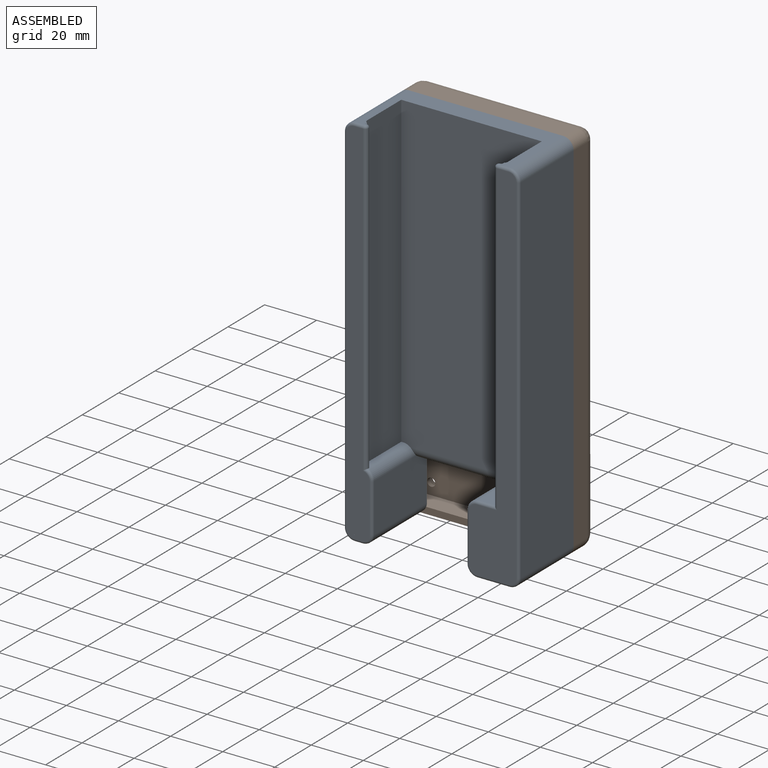
[diagram: assembled view]
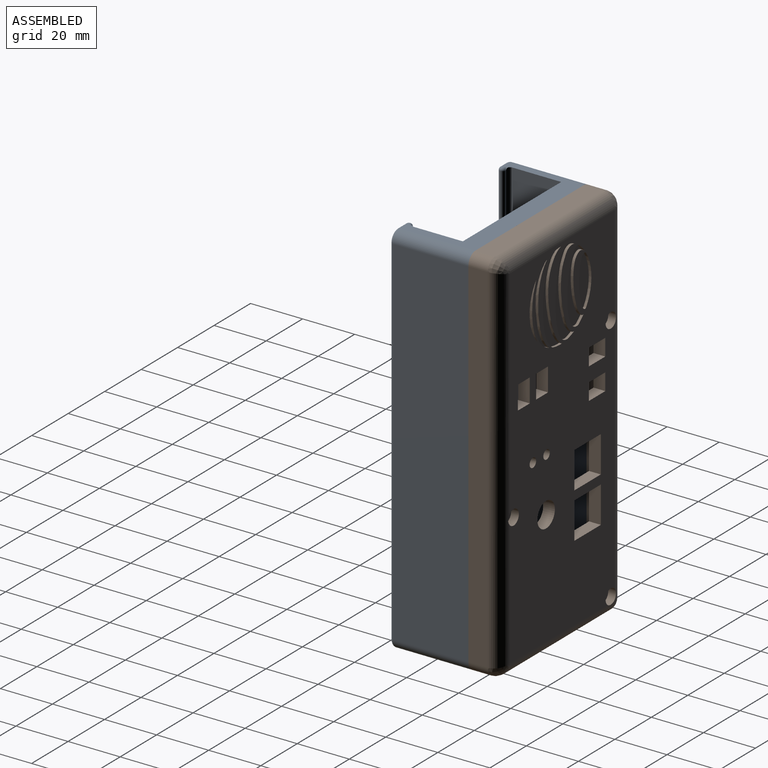
[diagram: assembled view, second angle]
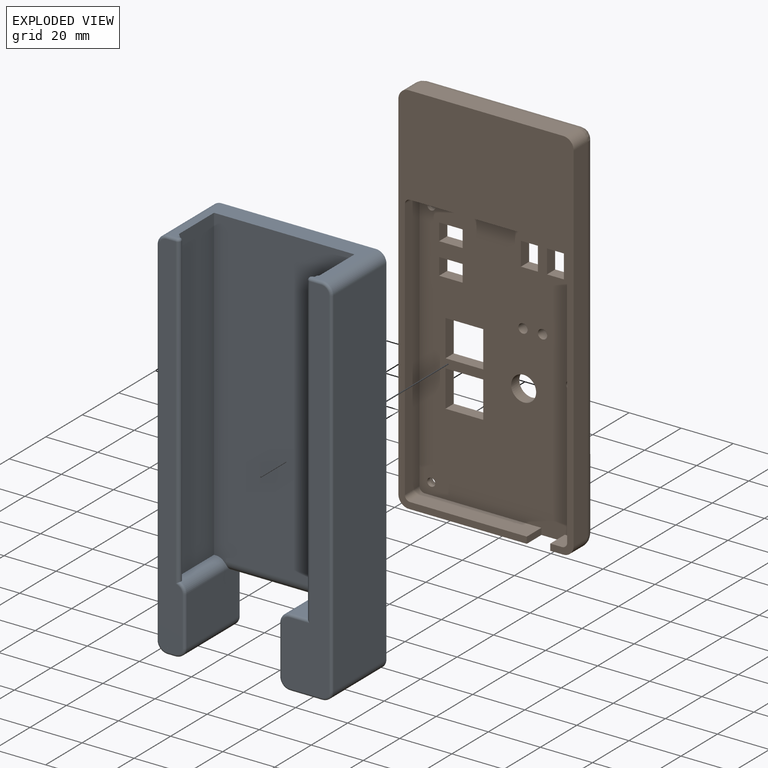
[diagram: exploded view]
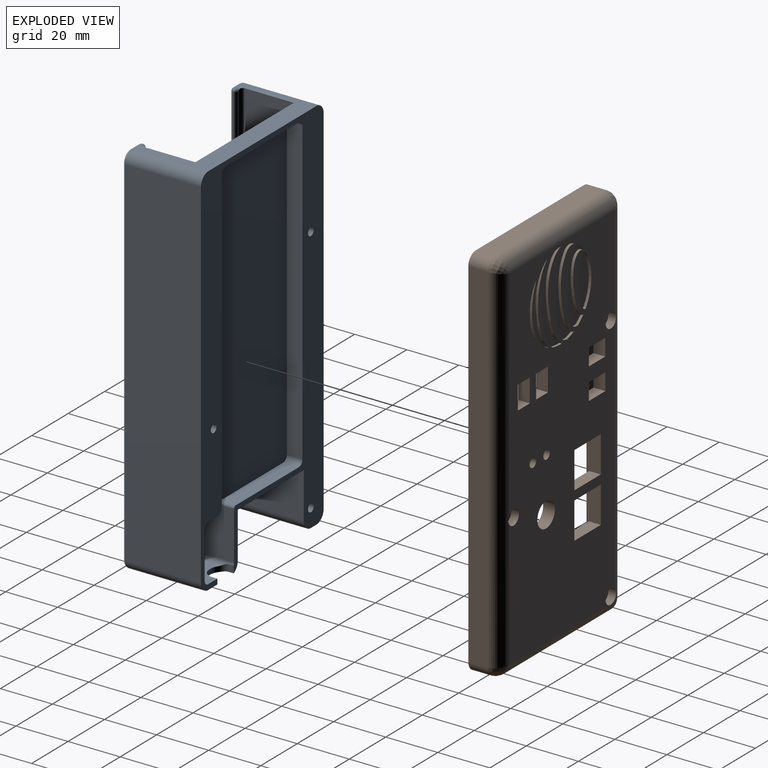
[diagram: exploded view, second angle]
ASSEMBLY  parts=2 mates=3
PART A: 86 faces, bbox 68.2x30.3x146.2 mm
  f0: plane 143.33x18.21mm, normal (0,-1,0), area 1326.2mm2, adj f4,f5,f6,f7,f8,f18,f19,f20
  f1: plane 3.1x3.1mm, normal (0,1,0), area 7.5mm2, adj f26
  f2: plane 3.1x3.1mm, normal (0,1,0), area 7.5mm2, adj f27
  f3: plane 3.1x3.1mm, normal (0,1,0), area 7.5mm2, adj f28
  f4: torus R=3mm, axis (0,1,0), area 9mm2, adj f0,f8,f18,f29
  f5: torus R=3mm, axis (0,-1,0), area 9mm2, adj f0,f6,f25,f30
  f6: cylinder r=1mm len=137.33mm, axis (0,0,1), area 215.7mm2, adj f0,f5,f7,f31
  f7: torus R=3mm, axis (0,-1,0), area 9mm2, adj f0,f6,f8,f32
  f8: cylinder r=1mm len=12.21mm, axis (1,0,0), area 19.2mm2, adj f0,f4,f7,f33
  f9: cylinder r=4mm len=4mm, axis (0,0,1), area 12.6mm2, adj f10,f33,f34,f35
  f10: plane 2x0.99mm, normal (0,1,0), area 2mm2, adj f9,f17,f33,f35
  f11: cylinder r=2mm len=6.75mm, axis (-1,0,0), area 18.1mm2, adj f12,f15,f39,f40
  f12: plane 121.09x44.48mm, normal (0,1,0), area 5279.9mm2, adj f11,f13,f15,f41,f42,f43,f44,f45
  f13: cylinder r=1mm len=1.12mm, axis (-0.05,1,0), area 1.1mm2, adj f12,f15,f47,f48
  f14: cylinder r=2mm len=10mm, axis (0,-1,0), area 31.4mm2, adj f15,f16,f39,f49
  f15: torus R=4mm, axis (-1,0,0), area 7.8mm2, adj f11,f12,f13,f14,f49
  f16: plane 21.62x16.21mm, normal (0,1,0), area 347mm2, adj f14,f35,f36,f37,f38,f39,f49,f50
  f17: cylinder r=4mm len=4mm, axis (0,0,-1), area 13.9mm2, adj f10,f29,f33,f35,f50,f51
  f18: cylinder r=1mm len=18.62mm, axis (0,0,-1), area 29.2mm2, adj f0,f4,f21,f53
  f19: cylinder r=1.25mm len=118.71mm, axis (0,0,-1), area 463.1mm2, adj f0,f20,f22,f24,f55
  f20: cylinder r=1mm len=7.75mm, axis (-1,0,0), area 11.2mm2, adj f0,f19,f21,f55
  f21: torus R=3mm, axis (0,1,0), area 9mm2, adj f0,f18,f20,f56
  f22: cylinder r=2.5mm len=118.71mm, axis (0,0,-1), area 214mm2, adj f19,f23,f54,f55,f59
  f23: torus R=1mm, axis (0,0,1), area 1.5mm2, adj f22,f24,f59
  f24: torus R=0.25mm, axis (0,0,1), area 4.4mm2, adj f19,f23,f25,f59
  f25: cylinder r=1mm len=4.46mm, axis (-1,0,0), area 7mm2, adj f0,f5,f24,f59
  f26: cylinder r=1.55mm len=6mm, axis (0,-1,0), area 58.4mm2, adj f1,f65
  f27: cylinder r=1.55mm len=6mm, axis (0,-1,0), area 58.4mm2, adj f2,f65
  f28: cylinder r=1.55mm len=6mm, axis (0,-1,0), area 58.4mm2, adj f3,f65
  f29: cylinder r=4mm len=29mm, axis (0,-1,0), area 175.5mm2, adj f4,f17,f33,f51,f53,f65
  f30: cylinder r=4mm len=29mm, axis (0,-1,0), area 182.2mm2, adj f5,f31,f59,f65
  f31: plane 137.33x29mm, normal (1,0,0), area 3982.5mm2, adj f6,f30,f32,f65
  f32: cylinder r=4mm len=29mm, axis (0,-1,0), area 182.2mm2, adj f7,f31,f33,f65
  f33: plane 29x12.21mm, normal (0,0,-1), area 314.7mm2, adj f8,f9,f10,f17,f29,f32,f34,f65
  f34: plane 2x2mm, normal (-1,0,0), area 4mm2, adj f9,f33,f35,f65
  f35: plane 18x12.21mm, normal (0,0,1), area 180.4mm2, adj f9,f10,f16,f17,f34,f36,f50,f65
  f36: cylinder r=2mm len=18mm, axis (0,-1,0), area 56.5mm2, adj f16,f35,f37,f65
  f37: plane 18x17.62mm, normal (-1,0,0), area 317.2mm2, adj f16,f36,f38,f65
  f38: cylinder r=2mm len=18mm, axis (0,-1,0), area 56.5mm2, adj f16,f37,f39,f65
  f39: plane 18x12.21mm, normal (0,0,-1), area 165.8mm2, adj f11,f14,f16,f38,f40,f65
  f40: cylinder r=2mm len=8mm, axis (0,-1,0), area 22mm2, adj f11,f39,f41,f65
  f41: plane 115.71x6mm, normal (-1,0,0), area 694.3mm2, adj f12,f40,f42,f65
  f42: cylinder r=2mm len=6mm, axis (0,-1,0), area 18.8mm2, adj f12,f41,f43,f65
  f43: plane 40.23x6mm, normal (0,0,-1), area 241.3mm2, adj f12,f42,f44,f65
  f44: cylinder r=2mm len=6mm, axis (0,-1,0), area 18.8mm2, adj f12,f43,f45,f65
  f45: plane 115.71x6mm, normal (1,0,0), area 694.3mm2, adj f12,f44,f46,f65
  f46: cylinder r=2mm len=6mm, axis (0,-1,0), area 18.8mm2, adj f12,f45,f47,f65
  f47: plane 34.5x6mm, normal (0,0,1), area 206.9mm2, adj f12,f13,f46,f48,f65
  f48: cylinder r=1mm len=5.35mm, axis (0,-1,0), area 8.4mm2, adj f13,f47,f49,f65
  f49: plane 18.62x18mm, normal (1,0,0), area 323.3mm2, adj f14,f15,f16,f48,f50,f65
  f50: cylinder r=2mm len=18mm, axis (0,-1,0), area 47.6mm2, adj f16,f17,f35,f49,f51,f65
  f51: plane 2.66x2mm, normal (1,0,0), area 5.3mm2, adj f17,f29,f50,f65
  f52: plane 36.15x3.18mm, normal (0,0,-1), area 115mm2, adj f53,f65,f66,f67
  f53: plane 29x18.62mm, normal (-1,0,0), area 535mm2, adj f18,f29,f52,f56,f65,f67
  f54: plane 118.71x19.07mm, normal (-1,0,0), area 2263.8mm2, adj f22,f55,f59,f68
  f55: plane 21.82x9mm, normal (0,0,1), area 192.4mm2, adj f19,f20,f22,f54,f56,f68
  f56: cylinder r=4mm len=23.17mm, axis (0,1,0), area 139.4mm2, adj f21,f53,f55,f67,f68
  f57: plane 118.71x19.07mm, normal (1,0,0), area 2263.8mm2, adj f59,f68,f69,f71
  f58: torus R=1mm, axis (0,0,1), area 1.5mm2, adj f59,f70,f71
  f59: plane 59.31x29mm, normal (0,0,1), area 545.3mm2, adj f22,f23,f24,f25,f30,f54,f57,f58
  f60: cylinder r=4mm len=29mm, axis (0,-1,0), area 182.2mm2, adj f59,f61,f65,f73
  f61: plane 137.33x29mm, normal (-1,0,0), area 3982.5mm2, adj f60,f62,f65,f74
  f62: cylinder r=4mm len=29mm, axis (0,-1,0), area 182.2mm2, adj f61,f63,f65,f75
  f63: plane 29x2.95mm, normal (0,0,-1), area 85.5mm2, adj f62,f64,f65,f76
  f64: cylinder r=4mm len=29mm, axis (0,1,0), area 182.2mm2, adj f63,f65,f66,f77
  f65: plane 145.33x67.31mm, normal (0,1,0), area 3298.5mm2, adj f26,f27,f28,f29,f30,f31,f32,f33
  f66: plane 29x18.62mm, normal (1,0,0), area 535mm2, adj f52,f64,f65,f67,f81,f82
  f67: cylinder r=4mm len=38.86mm, axis (-1,0,0), area 231.7mm2, adj f52,f53,f56,f66,f68,f82
  f68: plane 119.71x53.98mm, normal (0,-1,0), area 6447.8mm2, adj f54,f55,f56,f57,f59,f67,f69,f82
  f69: plane 20.08x0.83mm, normal (0,0,1), area 16.2mm2, adj f57,f68,f71,f82
  f70: torus R=0.25mm, axis (0,0,1), area 4.4mm2, adj f58,f59,f72,f83
  f71: cylinder r=2.5mm len=118.73mm, axis (0,0,-1), area 214.3mm2, adj f57,f58,f59,f69,f82,f83
  f72: cylinder r=1mm len=3.38mm, axis (-1,0,0), area 5.3mm2, adj f59,f70,f73,f84
  f73: torus R=3mm, axis (0,-1,0), area 9mm2, adj f60,f72,f74,f84
  f74: cylinder r=1mm len=137.33mm, axis (0,0,-1), area 215.7mm2, adj f61,f73,f75,f84
  f75: torus R=3mm, axis (0,-1,0), area 9mm2, adj f62,f74,f76,f84
  f76: cylinder r=1mm len=2.95mm, axis (1,0,0), area 4.6mm2, adj f63,f75,f77,f84
  f77: torus R=3mm, axis (0,1,0), area 9mm2, adj f64,f76,f81,f84
  f78: plane 30x0.55mm, normal (0,0,1), area 16.5mm2, adj f65,f79,f80,f84
  f79: plane 30x0.08mm, normal (1,0,0), area 2.3mm2, adj f65,f78,f80,f84
  f80: cylinder r=2mm len=30mm, axis (0,-1,0), area 16.7mm2, adj f65,f78,f79,f84
  f81: cylinder r=1mm len=18.62mm, axis (0,0,-1), area 29.2mm2, adj f66,f77,f84,f85
  f82: cylinder r=4mm len=23.17mm, axis (0,-1,0), area 136.1mm2, adj f66,f67,f68,f69,f71,f83,f85
  f83: cylinder r=1.25mm len=118.74mm, axis (0,0,-1), area 463.8mm2, adj f70,f71,f82,f84,f85
  f84: plane 143.33x8.95mm, normal (0,-1,0), area 969.4mm2, adj f72,f73,f74,f75,f76,f77,f78,f79
  f85: torus R=3mm, axis (0,1,0), area 7.3mm2, adj f81,f82,f83,f84
PART B: 93 faces, bbox 67.3x12.5x145.3 mm
  f0: cylinder r=4mm len=7.5mm, axis (0,1,0), area 47.1mm2, adj f14,f16,f18,f19
  f1: cylinder r=4mm len=7.5mm, axis (0,1,0), area 47.1mm2, adj f14,f16,f27,f28
  f2: cylinder r=4mm len=7.5mm, axis (0,-1,0), area 47.1mm2, adj f14,f19,f30,f31
  f3: cylinder r=1.55mm len=3.1mm, axis (0,1,0), area 14.6mm2, adj f17,f33
  f4: cylinder r=1.55mm len=3.1mm, axis (0,1,0), area 14.6mm2, adj f15,f33
  f5: cylinder r=2mm len=8mm, axis (0,-1,0), area 25.1mm2, adj f6,f13,f14,f33
  f6: plane 100.9x8mm, normal (1,0,0), area 807.2mm2, adj f5,f7,f14,f33
  f7: cylinder r=2mm len=8mm, axis (0,-1,0), area 25.1mm2, adj f6,f8,f14,f33
  f8: plane 58.31x8mm, normal (0,0,-1), area 466.5mm2, adj f7,f9,f14,f33
  f9: cylinder r=2mm len=8mm, axis (0,-1,0), area 25.1mm2, adj f8,f10,f14,f33
  f10: plane 100.9x8mm, normal (-1,0,0), area 807.2mm2, adj f9,f11,f14,f33
  f11: cylinder r=2mm len=8mm, axis (0,-1,0), area 25.1mm2, adj f10,f12,f14,f33
  f12: plane 8x4.5mm, normal (0,0,1), area 36mm2, adj f11,f14,f32,f33
  f13: plane 44.81x8mm, normal (0,0,1), area 358.5mm2, adj f5,f14,f33,f34
  f14: plane 145.33x67.31mm, normal (0,-1,0), area 3213mm2, adj f0,f1,f2,f5,f6,f7,f8,f9
  f15: plane 5.75x5.75mm, normal (0,1,0), area 18.4mm2, adj f4,f36
  f16: plane 59.31x7.5mm, normal (0,0,1), area 444.8mm2, adj f0,f1,f14,f37
  f17: plane 5.75x5.75mm, normal (0,1,0), area 18.4mm2, adj f3,f38
  f18: bspline ~5x5mm, area 21.9mm2, adj f0,f37,f39
  f19: plane 137.33x7.5mm, normal (1,0,0), area 1030mm2, adj f0,f2,f14,f39
  f20: plane 33.94x10.83mm, normal (0,1,0), area 107.1mm2, adj f67,f68,f69,f70
  f21: plane 27.81x9.71mm, normal (0,1,0), area 105.8mm2, adj f71,f72,f73,f74
  f22: plane 19.67x7.07mm, normal (0,1,0), area 100.2mm2, adj f75,f76
  f23: plane 31.2x8.23mm, normal (0,1,0), area 52.6mm2, adj f77,f78,f79,f80
  f24: plane 21.88x4.56mm, normal (0,1,0), area 21.6mm2, adj f81,f82
  f25: plane 33.12x10.95mm, normal (0,1,0), area 117.6mm2, adj f83,f84,f85,f86
  f26: cylinder r=1.55mm len=3.1mm, axis (0,1,0), area 14.6mm2, adj f33,f87
  f27: plane 137.33x7.5mm, normal (-1,0,0), area 1030mm2, adj f1,f14,f29,f88
  f28: bspline ~5x5mm, area 21.9mm2, adj f1,f37,f88
  f29: cylinder r=4mm len=7.5mm, axis (0,1,0), area 47.1mm2, adj f14,f27,f35,f89
  f30: bspline ~5x5mm, area 21.9mm2, adj f2,f39,f90
  f31: plane 7.5x5mm, normal (0,0,-1), area 37.5mm2, adj f2,f14,f32,f90
  f32: plane 8x2.5mm, normal (-1,0,0), area 20mm2, adj f12,f14,f31,f33,f90
  f33: plane 107.38x62.31mm, normal (0,-1,0), area 5800.1mm2, adj f3,f4,f5,f6,f7,f8,f9,f10
  f34: plane 8x2.5mm, normal (1,0,0), area 20mm2, adj f13,f14,f33,f35,f90
  f35: plane 45.31x7.5mm, normal (0,0,-1), area 339.8mm2, adj f14,f29,f34,f90
  f36: cylinder r=2.88mm len=5.75mm, axis (0,-1,0), area 54mm2, adj f15,f88,f91
  f37: cylinder r=5mm len=59.31mm, axis (1,0,0), area 458mm2, adj f16,f18,f28,f91
  f38: cylinder r=2.88mm len=5.75mm, axis (0,-1,0), area 54mm2, adj f17,f39,f91
  f39: cylinder r=5mm len=137.33mm, axis (0,0,-1), area 1068.9mm2, adj f18,f19,f30,f38,f91
  f40: cylinder r=1.78mm len=4.5mm, axis (0,-1,0), area 50.2mm2, adj f33,f91
  f41: cylinder r=1.78mm len=4.5mm, axis (0,-1,0), area 50.2mm2, adj f33,f91
  f42: plane 6.5x4.5mm, normal (0,0,-1), area 29.2mm2, adj f33,f43,f45,f91
  f43: plane 9.01x4.5mm, normal (1,0,0), area 40.5mm2, adj f33,f42,f44,f91
  f44: plane 6.5x4.5mm, normal (0,0,1), area 29.2mm2, adj f33,f43,f45,f91
  f45: plane 9.01x4.5mm, normal (-1,0,0), area 40.5mm2, adj f33,f42,f44,f91
  f46: plane 6.5x4.5mm, normal (0,0,1), area 29.2mm2, adj f33,f47,f49,f91
  f47: plane 9.01x4.5mm, normal (-1,0,0), area 40.5mm2, adj f33,f46,f48,f91
  f48: plane 6.5x4.5mm, normal (0,0,-1), area 29.2mm2, adj f33,f47,f49,f91
  f49: plane 9.01x4.5mm, normal (1,0,0), area 40.5mm2, adj f33,f46,f48,f91
  f50: plane 9.01x4.5mm, normal (0,0,-1), area 40.5mm2, adj f33,f51,f53,f91
  f51: plane 6.5x4.5mm, normal (1,0,0), area 29.2mm2, adj f33,f50,f52,f91
  f52: plane 9.01x4.5mm, normal (0,0,1), area 40.5mm2, adj f33,f51,f53,f91
  f53: plane 6.5x4.5mm, normal (-1,0,0), area 29.2mm2, adj f33,f50,f52,f91
  f54: plane 9.01x4.5mm, normal (0,0,-1), area 40.5mm2, adj f33,f55,f57,f91
  f55: plane 6.5x4.5mm, normal (1,0,0), area 29.3mm2, adj f33,f54,f56,f91
  f56: plane 9.01x4.5mm, normal (0,0,1), area 40.5mm2, adj f33,f55,f57,f91
  f57: plane 6.5x4.5mm, normal (-1,0,0), area 29.3mm2, adj f33,f54,f56,f91
  f58: cylinder r=4.8mm len=9.6mm, axis (0,1,0), area 135.7mm2, adj f33,f91
  f59: plane 14.5x4.5mm, normal (0,0,-1), area 65.2mm2, adj f33,f60,f62,f91
  f60: plane 14x4.5mm, normal (1,0,0), area 63mm2, adj f33,f59,f61,f91
  f61: plane 14.5x4.5mm, normal (0,0,1), area 65.2mm2, adj f33,f60,f62,f91
  f62: plane 14x4.5mm, normal (-1,0,0), area 63mm2, adj f33,f59,f61,f91
  f63: plane 14.5x4.5mm, normal (0,0,-1), area 65.2mm2, adj f33,f64,f66,f91
  f64: plane 14x4.5mm, normal (1,0,0), area 63mm2, adj f33,f63,f65,f91
  f65: plane 14.5x4.5mm, normal (0,0,1), area 65.2mm2, adj f33,f64,f66,f91
  f66: plane 14x4.5mm, normal (-1,0,0), area 63mm2, adj f33,f63,f65,f91
  f67: cylinder r=16.95mm len=3.04mm, axis (0,-1,0), area 3.1mm2, adj f20,f68,f70,f91
  f68: extruded ~33.88x7.68mm, area 38.9mm2, adj f20,f67,f69,f91
  f69: cylinder r=16.95mm len=5.04mm, axis (0,-1,0), area 5.1mm2, adj f20,f68,f70,f91
  f70: extruded ~33.18x6.97mm, area 37mm2, adj f20,f67,f69,f91
  f71: cylinder r=16.95mm len=2.96mm, axis (0,-1,0), area 4mm2, adj f21,f72,f74,f91
  f72: extruded ~27.75x6.23mm, area 33.4mm2, adj f21,f71,f73,f91
  f73: cylinder r=16.95mm len=3.22mm, axis (0,-1,0), area 4.4mm2, adj f21,f72,f74,f91
  f74: extruded ~22.86x6.09mm, area 29.1mm2, adj f21,f71,f73,f91
  f75: extruded ~19.64x3.93mm, area 23.4mm2, adj f22,f76,f91
  f76: cylinder r=16.95mm len=18.95mm, axis (0,-1,0), area 20.1mm2, adj f22,f75,f91
  f77: cylinder r=16.95mm len=3.91mm, axis (0,-1,0), area 4.5mm2, adj f23,f78,f80,f91
  f78: extruded ~28.3x5.72mm, area 30.8mm2, adj f23,f77,f79,f91
  f79: cylinder r=16.95mm len=1.38mm, axis (0,-1,0), area 1.6mm2, adj f23,f78,f80,f91
  f80: extruded ~31.18x6.06mm, area 34.2mm2, adj f23,f77,f79,f91
  f81: cylinder r=16.95mm len=21.87mm, axis (0,-1,0), area 23.8mm2, adj f24,f82,f91
  f82: extruded ~21.87x2.86mm, area 22.7mm2, adj f24,f81,f91
  f83: cylinder r=16.95mm len=3.74mm, axis (0,-1,0), area 4mm2, adj f25,f84,f86,f91
  f84: extruded ~33.1x6.48mm, area 38.1mm2, adj f25,f83,f85,f91
  f85: cylinder r=16.95mm len=4.2mm, axis (0,-1,0), area 4.5mm2, adj f25,f84,f86,f91
  f86: extruded ~30.48x7.65mm, area 37.2mm2, adj f25,f83,f85,f91
  f87: plane 5.86x5.75mm, normal (0,1,0), area 18.4mm2, adj f26,f92
  f88: cylinder r=5mm len=137.33mm, axis (0,0,1), area 1066.8mm2, adj f27,f28,f36,f89,f91,f92
  f89: bspline ~5x5mm, area 32.1mm2, adj f29,f88,f90,f92
  f90: cylinder r=5mm len=59.31mm, axis (-1,0,0), area 451mm2, adj f30,f31,f32,f33,f34,f35,f89,f91
  f91: plane 135.33x57.31mm, normal (0,1,0), area 6448mm2, adj f36,f37,f38,f39,f40,f41,f42,f43
  f92: cylinder r=2.88mm len=5.75mm, axis (0,-1,0), area 53.8mm2, adj f87,f88,f89,f90,f91
PLACE A t=(-50.01,47.22,-44.41)mm fixed
PLACE B t=(-50.01,27.22,-44.41)mm
MATE planar B.f14 <-> A.f65  axis (0,-1,0) through (-23.09,17.22,59.56)mm
MATE planar B.f27 <-> A.f61  axis (-1,0,0) through (-56.6,17.22,23.04)mm
MATE planar B.f16 <-> A.f59  axis (0,0,1) through (-22.95,17.22,95.71)mm
